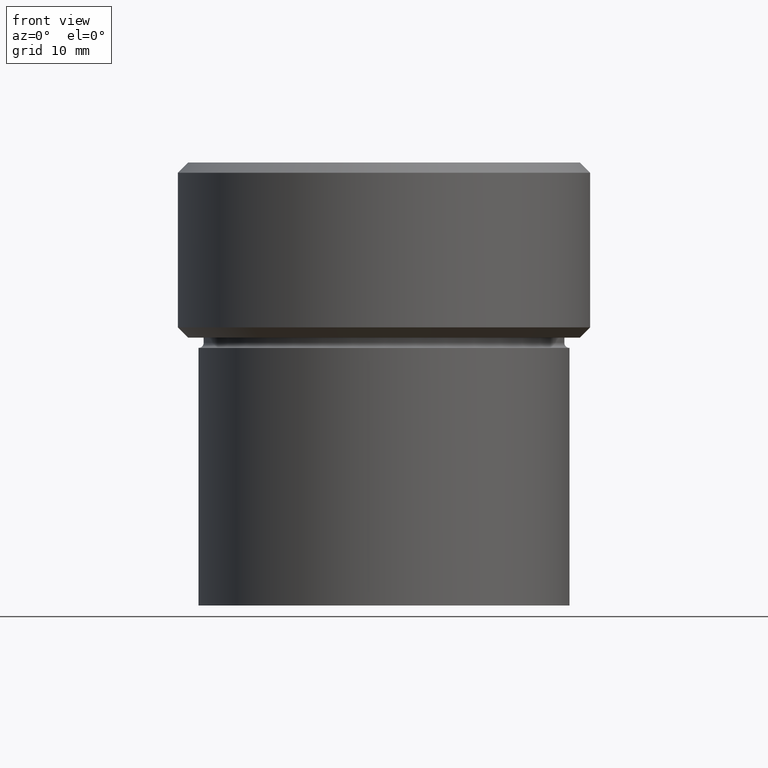
[diagram: clean part render]
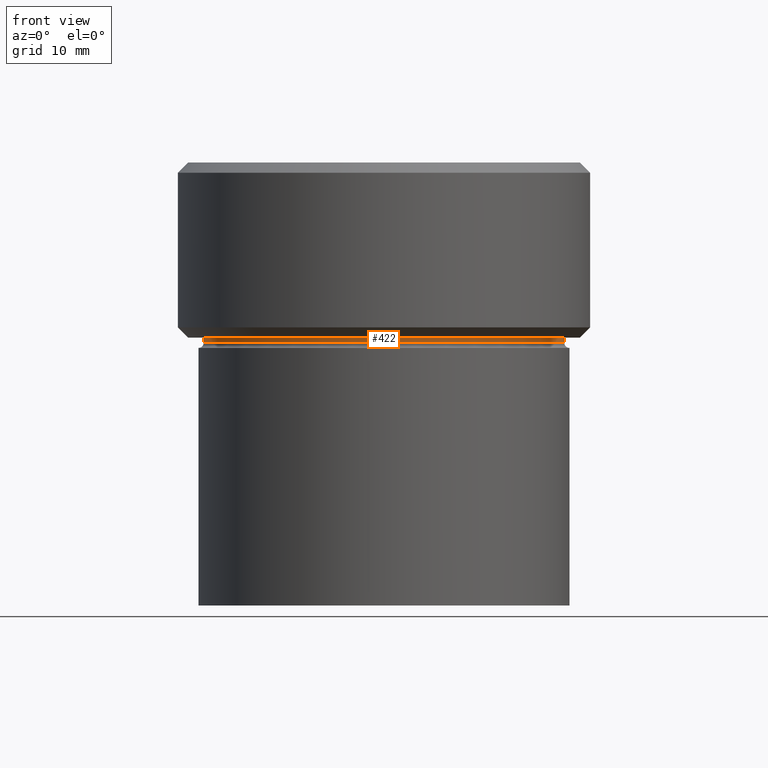
[diagram: same view with one face highlighted and labeled with its STEP entity id]
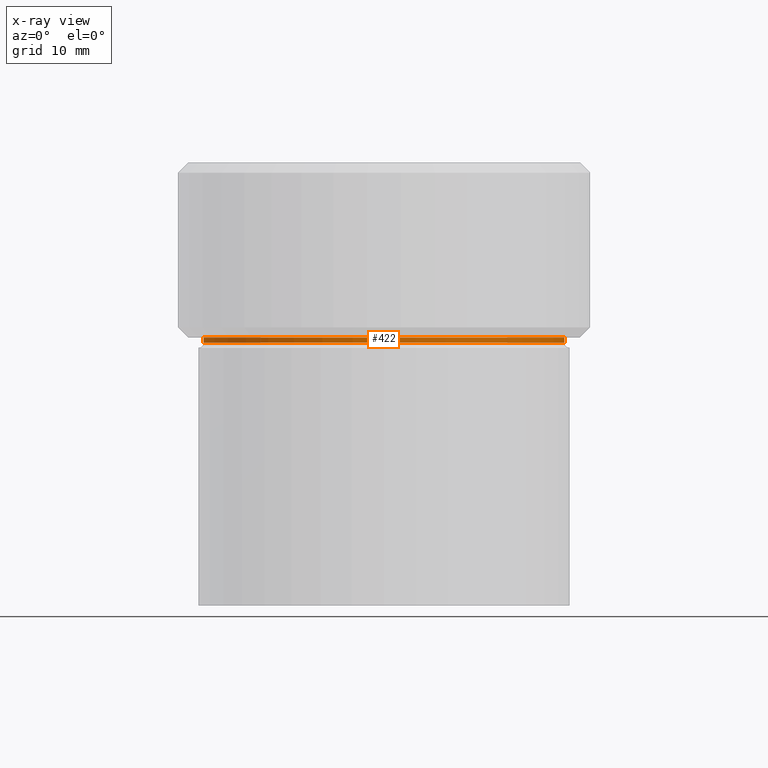
[diagram: x-ray of the same camera — body ghosted, the highlighted face saturated]
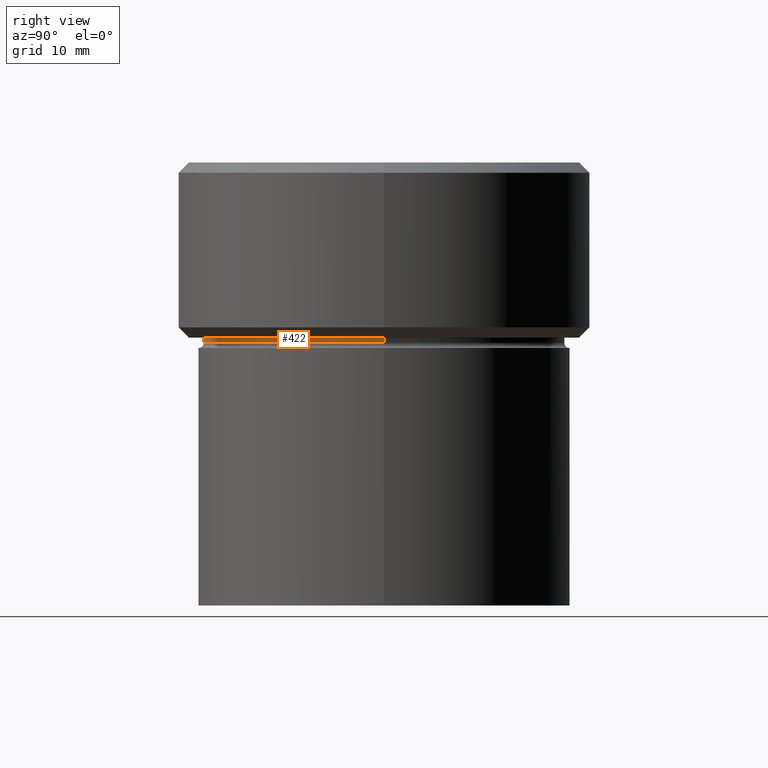
[diagram: same view with one face highlighted and labeled with its STEP entity id]
A machine part, front view. The second image highlights one B-rep face of the part: STEP entity #422.
The next image is the same camera in x-ray: the body ghosted, the highlighted face saturated — about 0% of this face is hidden behind the body in this view.
A second angle (right view) of the same face is appended — the face is thin or edge-on in the first view.
In plain terms, the highlighted cylindrical surface (partial cylindrical patch) has radius 17.5 mm, axis along (-0, -0, 1).
Its self-contained STEP definition (entity closure, byte-faithful):
#2 = CARTESIAN_POINT ( 'NONE',  ( -17.49999999999999645, 2.143131898507867854E-15, 0.000000000000000000 ) ) ;
#11 = ORIENTED_EDGE ( 'NONE', *, *, #282, .T. ) ;
#46 = DIRECTION ( 'NONE',  ( -0.000000000000000000, -0.000000000000000000, 1.000000000000000000 ) ) ;
#50 = CARTESIAN_POINT ( 'NONE',  ( -17.49999999999999645, 2.143131898507867854E-15, -17.00000000000000000 ) ) ;
#75 = CARTESIAN_POINT ( 'NONE',  ( 0.000000000000000000, 0.000000000000000000, -17.49999999999999645 ) ) ;
#81 = CARTESIAN_POINT ( 'NONE',  ( -17.49999999999999645, 2.143131898507867854E-15, -17.49999999999999645 ) ) ;
#93 = EDGE_CURVE ( 'NONE', #451, #334, #173, .T. ) ;
#113 = ORIENTED_EDGE ( 'NONE', *, *, #93, .F. ) ;
#116 = DIRECTION ( 'NONE',  ( -0.000000000000000000, -0.000000000000000000, 1.000000000000000000 ) ) ;
#144 = AXIS2_PLACEMENT_3D ( 'NONE', #489, #46, #204 ) ;
#150 = CARTESIAN_POINT ( 'NONE',  ( 0.000000000000000000, 0.000000000000000000, -17.00000000000000000 ) ) ;
#157 = LINE ( 'NONE', #484, #288 ) ;
#164 = CARTESIAN_POINT ( 'NONE',  ( 17.49999999999999645, 0.000000000000000000, -17.49999999999999645 ) ) ;
#173 = CIRCLE ( 'NONE', #280, 17.49999999999999645 ) ;
#174 = FACE_OUTER_BOUND ( 'NONE', #211, .T. ) ;
#190 = DIRECTION ( 'NONE',  ( 1.000000000000000000, 0.000000000000000000, 0.000000000000000000 ) ) ;
#191 = DIRECTION ( 'NONE',  ( -0.000000000000000000, -0.000000000000000000, 1.000000000000000000 ) ) ;
#194 = EDGE_CURVE ( 'NONE', #255, #383, #524, .T. ) ;
#204 = DIRECTION ( 'NONE',  ( 1.000000000000000000, 0.000000000000000000, 0.000000000000000000 ) ) ;
#208 = DIRECTION ( 'NONE',  ( -0.000000000000000000, -0.000000000000000000, 1.000000000000000000 ) ) ;
#211 = EDGE_LOOP ( 'NONE', ( #399, #396, #11, #113 ) ) ;
#237 = DIRECTION ( 'NONE',  ( 1.000000000000000000, 0.000000000000000000, 0.000000000000000000 ) ) ;
#255 = VERTEX_POINT ( 'NONE', #81 ) ;
#280 = AXIS2_PLACEMENT_3D ( 'NONE', #150, #428, #190 ) ;
#282 = EDGE_CURVE ( 'NONE', #383, #334, #157, .T. ) ;
#288 = VECTOR ( 'NONE', #116, 1000.000000000000000 ) ;
#289 = VECTOR ( 'NONE', #208, 1000.000000000000000 ) ;
#334 = VERTEX_POINT ( 'NONE', #374 ) ;
#374 = CARTESIAN_POINT ( 'NONE',  ( 17.49999999999999645, 0.000000000000000000, -17.00000000000000000 ) ) ;
#383 = VERTEX_POINT ( 'NONE', #164 ) ;
#392 = EDGE_CURVE ( 'NONE', #255, #451, #419, .T. ) ;
#396 = ORIENTED_EDGE ( 'NONE', *, *, #194, .T. ) ;
#399 = ORIENTED_EDGE ( 'NONE', *, *, #392, .F. ) ;
#419 = LINE ( 'NONE', #2, #289 ) ;
#422 = ADVANCED_FACE ( 'NONE', ( #174 ), #503, .T. ) ;
#428 = DIRECTION ( 'NONE',  ( -0.000000000000000000, -0.000000000000000000, 1.000000000000000000 ) ) ;
#451 = VERTEX_POINT ( 'NONE', #50 ) ;
#473 = AXIS2_PLACEMENT_3D ( 'NONE', #75, #191, #237 ) ;
#484 = CARTESIAN_POINT ( 'NONE',  ( 17.49999999999999645, 0.000000000000000000, 0.000000000000000000 ) ) ;
#489 = CARTESIAN_POINT ( 'NONE',  ( 0.000000000000000000, 0.000000000000000000, 0.000000000000000000 ) ) ;
#503 = CYLINDRICAL_SURFACE ( 'NONE', #144, 17.49999999999999645 ) ;
#524 = CIRCLE ( 'NONE', #473, 17.49999999999999645 ) ;